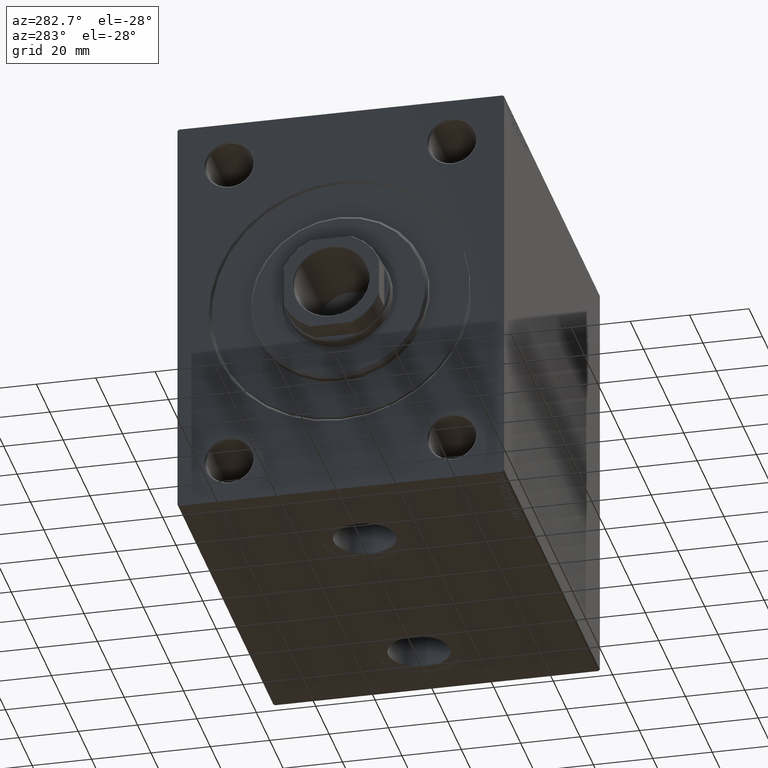
[diagram: clean part render]
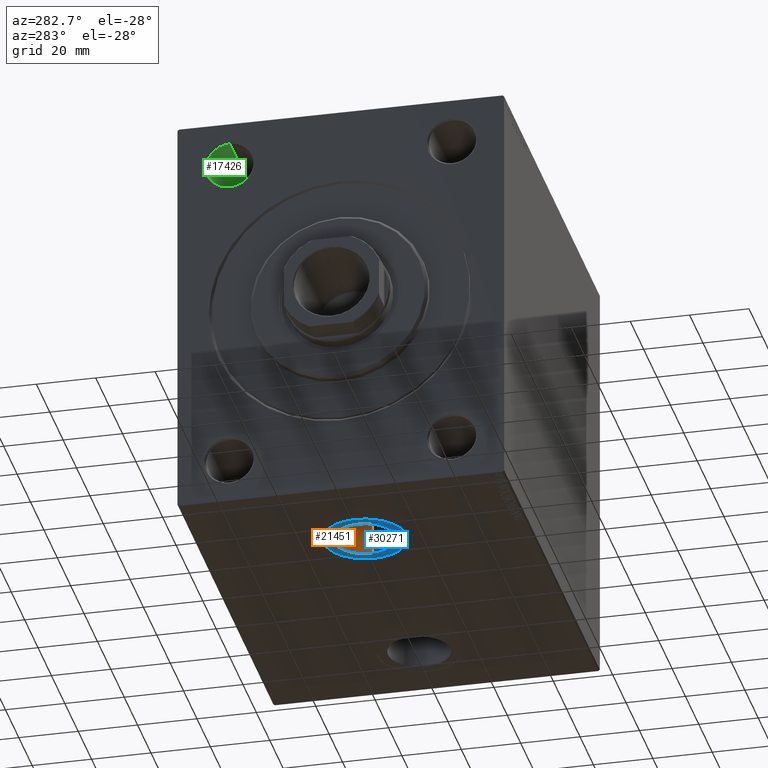
[diagram: same view with three faces highlighted in distinct colors, each labeled with its STEP entity id]
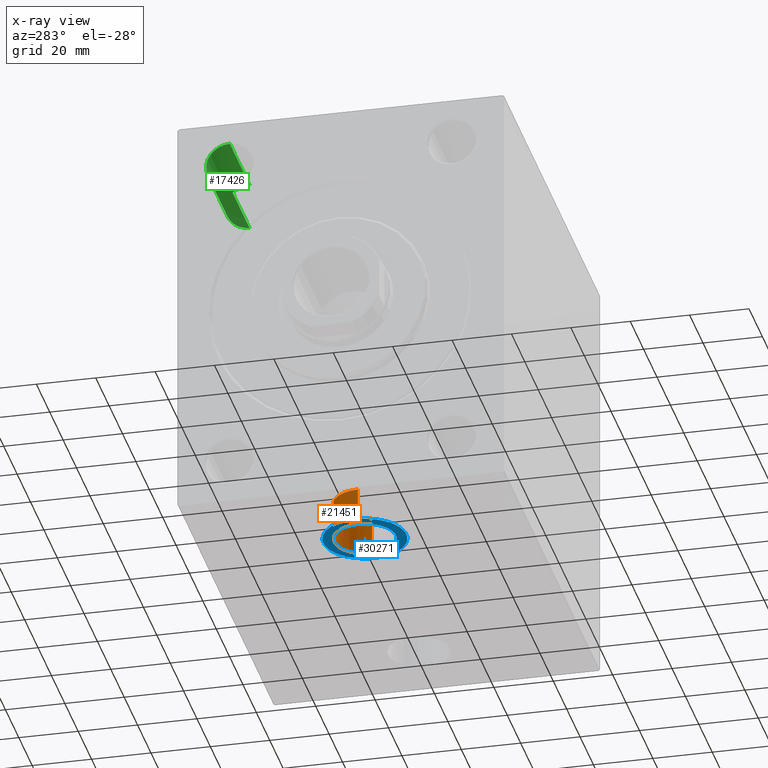
[diagram: x-ray of the same camera — body ghosted, the three highlighted faces saturated]
A machine part, auxiliary view with three faces highlighted in distinct colors.
The next image is the same camera in x-ray (body ghosted, the three faces saturated) — at least one of them is partly hidden behind the body in this view.
Their STEP definitions:

[orange] entity #21451 — the highlighted cylindrical surface (edge-blend (fillet) strip) has radius 10.48 mm, axis along (-0, -0, -1).
#188 = DIRECTION ( 'NONE',  ( 0.000000000000000000, 0.000000000000000000, -1.000000000000000000 ) ) ;
#342 = EDGE_LOOP ( 'NONE', ( #23621, #39922, #9385, #28307 ) ) ;
#2534 = VECTOR ( 'NONE', #19399, 1000.000000000000000 ) ;
#2573 = EDGE_CURVE ( 'NONE', #12392, #34867, #31849, .T. ) ;
#2928 = FACE_OUTER_BOUND ( 'NONE', #342, .T. ) ;
#5111 = VERTEX_POINT ( 'NONE', #16373 ) ;
#6783 = CARTESIAN_POINT ( 'NONE',  ( 46.47999999999999687, 5.489560609482857396E-15, -69.90000000000000568 ) ) ;
#8295 = AXIS2_PLACEMENT_3D ( 'NONE', #10589, #188, #24679 ) ;
#9385 = ORIENTED_EDGE ( 'NONE', *, *, #35313, .T. ) ;
#10589 = CARTESIAN_POINT ( 'NONE',  ( 36.00000000000000000, 4.206130763976431907E-15, -69.90000000000000568 ) ) ;
#11384 = VERTEX_POINT ( 'NONE', #24150 ) ;
#12030 = LINE ( 'NONE', #40435, #38513 ) ;
#12067 = CIRCLE ( 'NONE', #35651, 10.48000000000000043 ) ;
#12392 = VERTEX_POINT ( 'NONE', #41355 ) ;
#16373 = CARTESIAN_POINT ( 'NONE',  ( 25.51999999999999602, 4.206130763976431907E-15, -57.00000000000000000 ) ) ;
#19399 = DIRECTION ( 'NONE',  ( -0.000000000000000000, -0.000000000000000000, -1.000000000000000000 ) ) ;
#21451 = ADVANCED_FACE ( 'NONE', ( #2928 ), #37803, .F. ) ;
#21809 = DIRECTION ( 'NONE',  ( -1.000000000000000000, 0.000000000000000000, 0.000000000000000000 ) ) ;
#22032 = CARTESIAN_POINT ( 'NONE',  ( 36.00000000000000000, 4.206130763976431907E-15, -57.00000000000000000 ) ) ;
#23621 = ORIENTED_EDGE ( 'NONE', *, *, #28219, .F. ) ;
#24150 = CARTESIAN_POINT ( 'NONE',  ( 46.47999999999999687, 5.489560609482857396E-15, -57.00000000000000000 ) ) ;
#24679 = DIRECTION ( 'NONE',  ( -1.000000000000000000, 0.000000000000000000, 0.000000000000000000 ) ) ;
#25644 = DIRECTION ( 'NONE',  ( -0.000000000000000000, -0.000000000000000000, -1.000000000000000000 ) ) ;
#26517 = CARTESIAN_POINT ( 'NONE',  ( 36.00000000000000000, 4.206130763976431907E-15, -57.00000000000000000 ) ) ;
#26808 = AXIS2_PLACEMENT_3D ( 'NONE', #26517, #44074, #33884 ) ;
#28219 = EDGE_CURVE ( 'NONE', #11384, #34867, #39486, .T. ) ;
#28307 = ORIENTED_EDGE ( 'NONE', *, *, #2573, .T. ) ;
#29321 = CARTESIAN_POINT ( 'NONE',  ( 46.47999999999999687, 5.489560609482857396E-15, -57.00000000000000000 ) ) ;
#31849 = CIRCLE ( 'NONE', #8295, 10.48000000000000043 ) ;
#33884 = DIRECTION ( 'NONE',  ( -1.000000000000000000, 0.000000000000000000, 0.000000000000000000 ) ) ;
#34867 = VERTEX_POINT ( 'NONE', #6783 ) ;
#35313 = EDGE_CURVE ( 'NONE', #5111, #12392, #12030, .T. ) ;
#35651 = AXIS2_PLACEMENT_3D ( 'NONE', #22032, #39580, #21809 ) ;
#37260 = EDGE_CURVE ( 'NONE', #5111, #11384, #12067, .T. ) ;
#37803 = CYLINDRICAL_SURFACE ( 'NONE', #26808, 10.48000000000000043 ) ;
#38513 = VECTOR ( 'NONE', #25644, 1000.000000000000000 ) ;
#39486 = LINE ( 'NONE', #29321, #2534 ) ;
#39580 = DIRECTION ( 'NONE',  ( 0.000000000000000000, 0.000000000000000000, -1.000000000000000000 ) ) ;
#39922 = ORIENTED_EDGE ( 'NONE', *, *, #37260, .F. ) ;
#40435 = CARTESIAN_POINT ( 'NONE',  ( 25.51999999999999602, 4.206130763976431907E-15, -57.00000000000000000 ) ) ;
#41355 = CARTESIAN_POINT ( 'NONE',  ( 25.51999999999999602, 4.206130763976431907E-15, -69.90000000000000568 ) ) ;
#44074 = DIRECTION ( 'NONE',  ( -0.000000000000000000, -0.000000000000000000, -1.000000000000000000 ) ) ;

[blue] entity #30271 — the highlighted planar face has unit normal (0, 0, -1).
#188 = DIRECTION ( 'NONE',  ( 0.000000000000000000, 0.000000000000000000, -1.000000000000000000 ) ) ;
#885 = VERTEX_POINT ( 'NONE', #2784 ) ;
#2573 = EDGE_CURVE ( 'NONE', #12392, #34867, #31849, .T. ) ;
#2657 = DIRECTION ( 'NONE',  ( 0.000000000000000000, 0.000000000000000000, -1.000000000000000000 ) ) ;
#2784 = CARTESIAN_POINT ( 'NONE',  ( 50.00000000000000000, 5.920636282782727137E-15, -69.90000000000000568 ) ) ;
#4585 = ORIENTED_EDGE ( 'NONE', *, *, #4671, .F. ) ;
#4607 = AXIS2_PLACEMENT_3D ( 'NONE', #31566, #44774, #45675 ) ;
#4671 = EDGE_CURVE ( 'NONE', #34867, #12392, #8797, .T. ) ;
#6529 = EDGE_CURVE ( 'NONE', #885, #36166, #39758, .T. ) ;
#6783 = CARTESIAN_POINT ( 'NONE',  ( 46.47999999999999687, 5.489560609482857396E-15, -69.90000000000000568 ) ) ;
#8295 = AXIS2_PLACEMENT_3D ( 'NONE', #10589, #188, #24679 ) ;
#8797 = CIRCLE ( 'NONE', #19100, 10.48000000000000043 ) ;
#10477 = DIRECTION ( 'NONE',  ( -1.000000000000000000, 0.000000000000000000, 0.000000000000000000 ) ) ;
#10589 = CARTESIAN_POINT ( 'NONE',  ( 36.00000000000000000, 4.206130763976431907E-15, -69.90000000000000568 ) ) ;
#12392 = VERTEX_POINT ( 'NONE', #41355 ) ;
#17347 = AXIS2_PLACEMENT_3D ( 'NONE', #28513, #21815, #42598 ) ;
#19100 = AXIS2_PLACEMENT_3D ( 'NONE', #42561, #41655, #25003 ) ;
#21815 = DIRECTION ( 'NONE',  ( 0.000000000000000000, 0.000000000000000000, -1.000000000000000000 ) ) ;
#22304 = CIRCLE ( 'NONE', #4607, 13.99999999999999822 ) ;
#24679 = DIRECTION ( 'NONE',  ( -1.000000000000000000, 0.000000000000000000, 0.000000000000000000 ) ) ;
#25003 = DIRECTION ( 'NONE',  ( -1.000000000000000000, 0.000000000000000000, 0.000000000000000000 ) ) ;
#27947 = AXIS2_PLACEMENT_3D ( 'NONE', #31272, #2657, #10477 ) ;
#28285 = FACE_BOUND ( 'NONE', #30777, .T. ) ;
#28504 = ORIENTED_EDGE ( 'NONE', *, *, #2573, .F. ) ;
#28513 = CARTESIAN_POINT ( 'NONE',  ( 0.000000000000000000, 0.000000000000000000, -69.90000000000000568 ) ) ;
#30271 = ADVANCED_FACE ( 'NONE', ( #28285, #31293 ), #42375, .T. ) ;
#30777 = EDGE_LOOP ( 'NONE', ( #28504, #4585 ) ) ;
#31272 = CARTESIAN_POINT ( 'NONE',  ( 36.00000000000000000, 4.206130763976431907E-15, -69.90000000000000568 ) ) ;
#31293 = FACE_OUTER_BOUND ( 'NONE', #33720, .T. ) ;
#31566 = CARTESIAN_POINT ( 'NONE',  ( 36.00000000000000000, 4.206130763976431907E-15, -69.90000000000000568 ) ) ;
#31849 = CIRCLE ( 'NONE', #8295, 10.48000000000000043 ) ;
#33680 = ORIENTED_EDGE ( 'NONE', *, *, #6529, .T. ) ;
#33720 = EDGE_LOOP ( 'NONE', ( #41917, #33680 ) ) ;
#34272 = EDGE_CURVE ( 'NONE', #36166, #885, #22304, .T. ) ;
#34867 = VERTEX_POINT ( 'NONE', #6783 ) ;
#36166 = VERTEX_POINT ( 'NONE', #41847 ) ;
#39758 = CIRCLE ( 'NONE', #27947, 13.99999999999999822 ) ;
#41355 = CARTESIAN_POINT ( 'NONE',  ( 25.51999999999999602, 4.206130763976431907E-15, -69.90000000000000568 ) ) ;
#41655 = DIRECTION ( 'NONE',  ( 0.000000000000000000, 0.000000000000000000, -1.000000000000000000 ) ) ;
#41847 = CARTESIAN_POINT ( 'NONE',  ( 22.00000000000000000, 4.206130763976431907E-15, -69.90000000000000568 ) ) ;
#41917 = ORIENTED_EDGE ( 'NONE', *, *, #34272, .T. ) ;
#42375 = PLANE ( 'NONE',  #17347 ) ;
#42561 = CARTESIAN_POINT ( 'NONE',  ( 36.00000000000000000, 4.206130763976431907E-15, -69.90000000000000568 ) ) ;
#42598 = DIRECTION ( 'NONE',  ( -1.000000000000000000, 0.000000000000000000, -0.000000000000000000 ) ) ;
#44774 = DIRECTION ( 'NONE',  ( 0.000000000000000000, 0.000000000000000000, -1.000000000000000000 ) ) ;
#45675 = DIRECTION ( 'NONE',  ( -1.000000000000000000, 0.000000000000000000, 0.000000000000000000 ) ) ;

[green] entity #17426 — the highlighted cylindrical surface (edge-blend (fillet) strip) has radius 8 mm, axis along (-1, -0, -0).
#1620 = AXIS2_PLACEMENT_3D ( 'NONE', #37912, #10411, #24497 ) ;
#2458 = DIRECTION ( 'NONE',  ( 0.000000000000000000, 0.000000000000000000, -1.000000000000000000 ) ) ;
#2464 = AXIS2_PLACEMENT_3D ( 'NONE', #33867, #20007, #2458 ) ;
#2652 = CARTESIAN_POINT ( 'NONE',  ( 30.00000000000000000, 37.50000000000000000, 47.00000000000001421 ) ) ;
#3045 = VERTEX_POINT ( 'NONE', #2652 ) ;
#8672 = LINE ( 'NONE', #9127, #18778 ) ;
#9127 = CARTESIAN_POINT ( 'NONE',  ( 0.000000000000000000, 37.50000000000000000, 47.00000000000001421 ) ) ;
#10195 = FACE_OUTER_BOUND ( 'NONE', #13388, .T. ) ;
#10411 = DIRECTION ( 'NONE',  ( -1.000000000000000000, -0.000000000000000000, -0.000000000000000000 ) ) ;
#10966 = CARTESIAN_POINT ( 'NONE',  ( 30.00000000000000000, 37.50000000000000000, 55.00000000000000711 ) ) ;
#12069 = CIRCLE ( 'NONE', #2464, 7.999999999999992895 ) ;
#13388 = EDGE_LOOP ( 'NONE', ( #38307, #15059, #21902, #15509 ) ) ;
#14880 = DIRECTION ( 'NONE',  ( 0.000000000000000000, 0.000000000000000000, 1.000000000000000000 ) ) ;
#14982 = VERTEX_POINT ( 'NONE', #15731 ) ;
#15059 = ORIENTED_EDGE ( 'NONE', *, *, #41057, .F. ) ;
#15509 = ORIENTED_EDGE ( 'NONE', *, *, #25653, .T. ) ;
#15731 = CARTESIAN_POINT ( 'NONE',  ( 0.5000000000000108802, 37.50000000000000000, 63.00000000000000000 ) ) ;
#17426 = ADVANCED_FACE ( 'NONE', ( #10195 ), #23602, .F. ) ;
#18129 = DIRECTION ( 'NONE',  ( -1.000000000000000000, -0.000000000000000000, -0.000000000000000000 ) ) ;
#18778 = VECTOR ( 'NONE', #44006, 1000.000000000000000 ) ;
#19452 = AXIS2_PLACEMENT_3D ( 'NONE', #10966, #18129, #14880 ) ;
#20007 = DIRECTION ( 'NONE',  ( -1.000000000000000000, 0.000000000000000000, 0.000000000000000000 ) ) ;
#21902 = ORIENTED_EDGE ( 'NONE', *, *, #24016, .T. ) ;
#23602 = CYLINDRICAL_SURFACE ( 'NONE', #1620, 7.999999999999992895 ) ;
#24016 = EDGE_CURVE ( 'NONE', #31431, #14982, #42029, .T. ) ;
#24497 = DIRECTION ( 'NONE',  ( 0.000000000000000000, 0.000000000000000000, 1.000000000000000000 ) ) ;
#25653 = EDGE_CURVE ( 'NONE', #14982, #33759, #12069, .T. ) ;
#28994 = CIRCLE ( 'NONE', #19452, 7.999999999999992895 ) ;
#31431 = VERTEX_POINT ( 'NONE', #42651 ) ;
#32726 = CARTESIAN_POINT ( 'NONE',  ( 0.5000000000000108802, 37.50000000000000000, 47.00000000000001421 ) ) ;
#33759 = VERTEX_POINT ( 'NONE', #32726 ) ;
#33867 = CARTESIAN_POINT ( 'NONE',  ( 0.5000000000000108802, 37.50000000000000000, 55.00000000000000711 ) ) ;
#34106 = VECTOR ( 'NONE', #34419, 1000.000000000000000 ) ;
#34419 = DIRECTION ( 'NONE',  ( -1.000000000000000000, -0.000000000000000000, -0.000000000000000000 ) ) ;
#37912 = CARTESIAN_POINT ( 'NONE',  ( 0.000000000000000000, 37.50000000000000000, 55.00000000000000711 ) ) ;
#38307 = ORIENTED_EDGE ( 'NONE', *, *, #44097, .F. ) ;
#41057 = EDGE_CURVE ( 'NONE', #31431, #3045, #28994, .T. ) ;
#41580 = CARTESIAN_POINT ( 'NONE',  ( 0.000000000000000000, 37.50000000000000000, 63.00000000000000000 ) ) ;
#42029 = LINE ( 'NONE', #41580, #34106 ) ;
#42651 = CARTESIAN_POINT ( 'NONE',  ( 30.00000000000000000, 37.50000000000000000, 63.00000000000000000 ) ) ;
#44006 = DIRECTION ( 'NONE',  ( -1.000000000000000000, -0.000000000000000000, -0.000000000000000000 ) ) ;
#44097 = EDGE_CURVE ( 'NONE', #3045, #33759, #8672, .T. ) ;